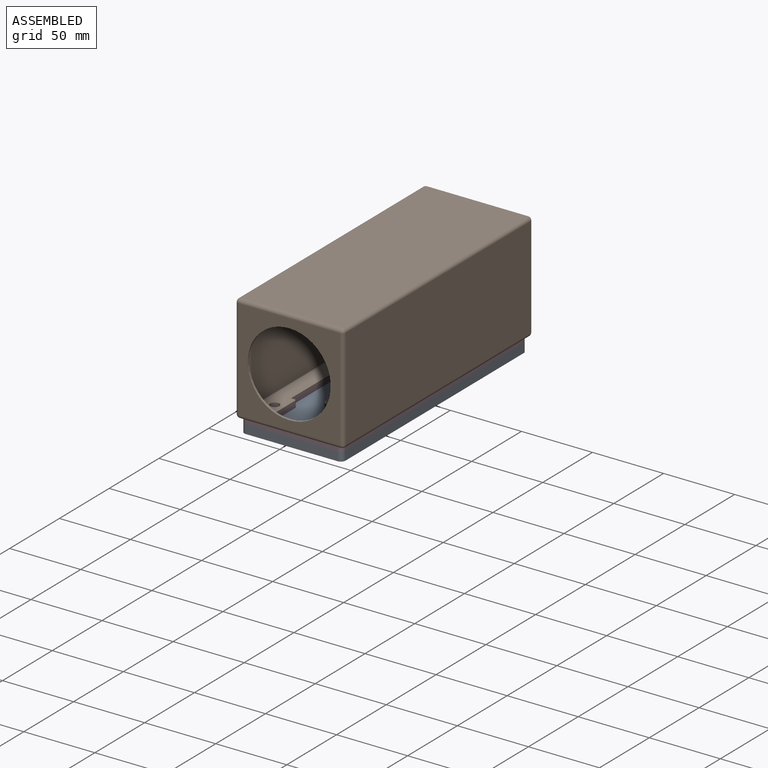
[diagram: assembled view]
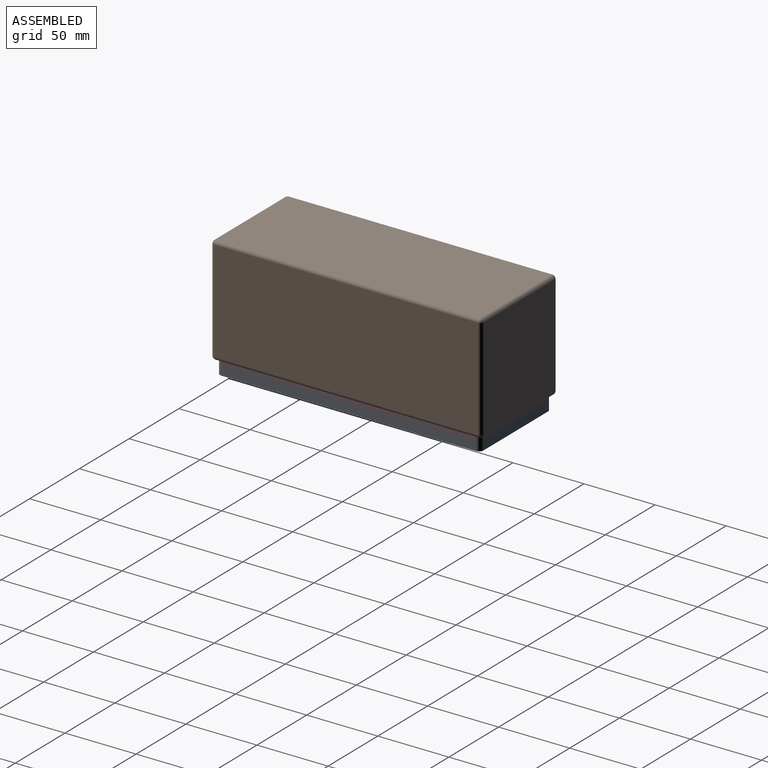
[diagram: assembled view, second angle]
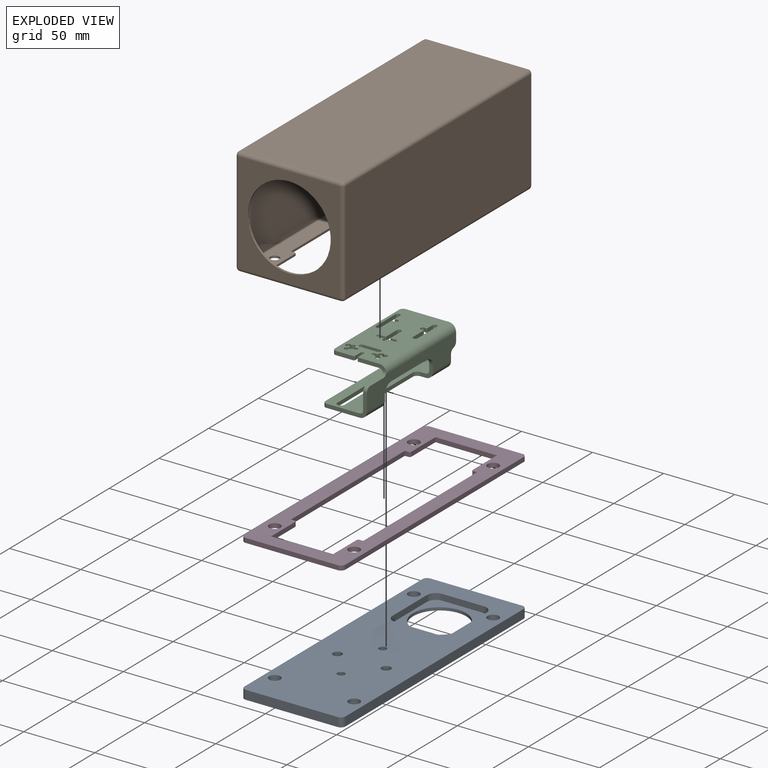
[diagram: exploded view]
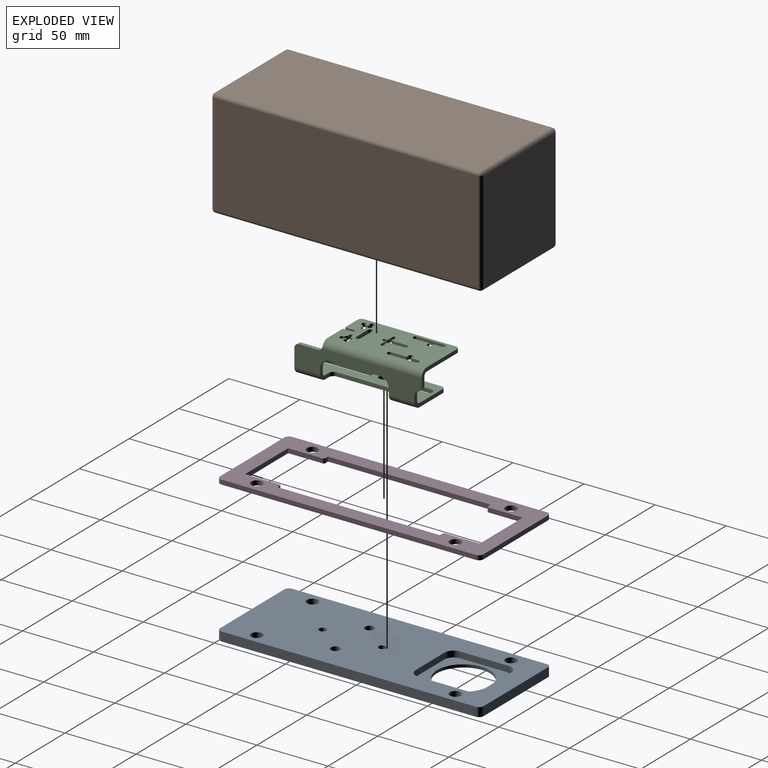
[diagram: exploded view, second angle]
ASSEMBLY  parts=4 mates=3
PART A: 36 faces, bbox 71.1x185.4x6.4 mm
  f0: cylinder r=2.86mm len=5.72mm, axis (0,0,1), area 22.8mm2, adj f9,f35
  f1: cylinder r=2.86mm len=5.72mm, axis (0,0,1), area 22.8mm2, adj f10,f35
  f2: cylinder r=2.86mm len=5.72mm, axis (0,0,1), area 22.8mm2, adj f11,f35
  f3: cylinder r=2.86mm len=5.72mm, axis (0,0,1), area 22.8mm2, adj f12,f35
  f4: cylinder r=2.54mm len=6.35mm, axis (0,0,1), area 101.3mm2, adj f26,f35
  f5: cylinder r=2.54mm len=6.35mm, axis (0,0,1), area 101.3mm2, adj f26,f35
  f6: cylinder r=3.17mm len=6.35mm, axis (0,0,1), area 126.7mm2, adj f26,f35
  f7: cylinder r=3.17mm len=6.35mm, axis (0,0,1), area 126.7mm2, adj f26,f35
  f8: cylinder r=18.73mm len=37.47mm, axis (0,0,1), area 238.3mm2, adj f25,f35
  f9: cone r=2.86mm half-angle=45deg, axis (0,0,1), area 33.9mm2, adj f0,f13
  f10: cone r=2.86mm half-angle=45deg, axis (0,0,1), area 33.9mm2, adj f1,f14
  f11: cone r=2.86mm half-angle=45deg, axis (0,0,1), area 33.9mm2, adj f2,f15
  f12: cone r=2.86mm half-angle=45deg, axis (0,0,1), area 33.9mm2, adj f3,f16
  f13: cylinder r=3.98mm len=7.95mm, axis (0,0,1), area 99mm2, adj f9,f26
  f14: cylinder r=3.98mm len=7.95mm, axis (0,0,1), area 99mm2, adj f10,f26
  f15: cylinder r=3.98mm len=7.95mm, axis (0,0,1), area 99mm2, adj f11,f26
  f16: cylinder r=3.98mm len=7.95mm, axis (0,0,1), area 99mm2, adj f12,f26
  f17: plane 34.29x4.33mm, normal (-1,0,0), area 148.3mm2, adj f18,f24,f25,f26
  f18: cylinder r=6.35mm len=6.35mm, axis (0,0,-1), area 43.1mm2, adj f17,f19,f25,f26
  f19: plane 29.21x4.33mm, normal (0,-1,0), area 126.3mm2, adj f18,f20,f25,f26
  f20: cylinder r=6.35mm len=6.35mm, axis (0,0,-1), area 43.1mm2, adj f19,f21,f25,f26
  f21: plane 34.29x4.33mm, normal (1,0,0), area 148.3mm2, adj f20,f22,f25,f26
  f22: cylinder r=6.35mm len=6.35mm, axis (0,0,-1), area 43.1mm2, adj f21,f23,f25,f26
  f23: plane 29.21x4.33mm, normal (0,1,0), area 126.3mm2, adj f22,f24,f25,f26
  f24: cylinder r=6.35mm len=6.35mm, axis (0,0,-1), area 43.1mm2, adj f17,f23,f25,f26
  f25: plane 46.99x41.91mm, normal (0,0,1), area 832.3mm2, adj f8,f17,f18,f19,f20,f21,f22,f23
  f26: plane 185.42x71.12mm, normal (0,0,1), area 10941.2mm2, adj f4,f5,f6,f7,f13,f14,f15,f16
  f27: cylinder r=3.17mm len=6.35mm, axis (0,0,1), area 31.7mm2, adj f26,f28,f34,f35
  f28: plane 179.07x6.35mm, normal (-1,0,0), area 1137.1mm2, adj f26,f27,f29,f35
  f29: cylinder r=3.17mm len=6.35mm, axis (0,0,1), area 31.7mm2, adj f26,f28,f30,f35
  f30: plane 64.77x6.35mm, normal (0,1,0), area 411.3mm2, adj f26,f29,f31,f35
  f31: cylinder r=3.17mm len=6.35mm, axis (0,0,1), area 31.7mm2, adj f26,f30,f32,f35
  f32: plane 179.07x6.35mm, normal (1,0,0), area 1137.1mm2, adj f26,f31,f33,f35
  f33: cylinder r=3.17mm len=6.35mm, axis (0,0,1), area 31.7mm2, adj f26,f32,f34,f35
  f34: plane 64.77x6.35mm, normal (0,-1,0), area 411.3mm2, adj f26,f27,f33,f35
  f35: plane 185.42x71.12mm, normal (0,0,-1), area 11869.5mm2, adj f0,f1,f2,f3,f4,f5,f6,f7
PART B: 81 faces, bbox 76.2x190.5x76.2 mm
  f0: sphere r=2.54mm, area 6.7mm2, adj f67,f75,f78,f79
  f1: sphere r=2.54mm, area 8.1mm2, adj f43,f47,f65,f67
  f2: sphere r=2.54mm, area 1.3mm2, adj f40,f46,f47
  f3: sphere r=2.54mm, area 3.4mm2, adj f38,f45,f46
  f4: sphere r=1.02mm, area 0.3mm2, adj f29,f33,f36
  f5: sphere r=1.02mm, area 1.4mm2, adj f28,f30,f35,f36
  f6: sphere r=1.02mm, area 1.1mm2, adj f19,f21,f30,f32
  f7: sphere r=1.02mm, area 0.5mm2, adj f13,f17,f33
  f8: cylinder r=3.17mm len=6.35mm, axis (0,0,1), area 30.4mm2, adj f39,f71
  f9: cylinder r=3.17mm len=6.35mm, axis (0,0,1), area 30.4mm2, adj f39,f71
  f10: cylinder r=3.17mm len=6.35mm, axis (0,0,1), area 30.4mm2, adj f39,f71
  f11: cylinder r=3.17mm len=6.35mm, axis (0,0,1), area 30.4mm2, adj f39,f71
  f12: cylinder r=29.21mm len=58.42mm, axis (0,-1,0), area 279.7mm2, adj f37,f70
  f13: sphere r=1.02mm, area 1.1mm2, adj f7,f17,f33,f34
  f14: sphere r=1.02mm, area 1.6mm2, adj f16,f17,f18
  f15: sphere r=1.02mm, area 1.6mm2, adj f16,f19,f20
  f16: cylinder r=1.02mm len=71.12mm, axis (-1,0,0), area 113.5mm2, adj f14,f15,f23,f24
  f17: cylinder r=1.02mm len=71.12mm, axis (0,0,-1), area 113.5mm2, adj f7,f13,f14,f24,f25
  f18: cylinder r=1.02mm len=185.42mm, axis (0,-1,0), area 295.9mm2, adj f14,f22,f23,f25
  f19: cylinder r=1.02mm len=185.42mm, axis (0,1,0), area 295.9mm2, adj f6,f15,f23,f27
  f20: cylinder r=1.02mm len=71.12mm, axis (0,0,-1), area 113.5mm2, adj f15,f24,f27,f29
  f21: sphere r=1.02mm, area 0.5mm2, adj f6,f30,f32
  f22: sphere r=1.02mm, area 1.6mm2, adj f18,f31,f32
  f23: plane 185.42x71.12mm, normal (0,0,-1), area 13187.1mm2, adj f16,f18,f19,f32
  f24: plane 71.12x71.12mm, normal (0,-1,0), area 5058.1mm2, adj f16,f17,f20,f33
  f25: plane 185.42x71.12mm, normal (1,0,0), area 13187.1mm2, adj f17,f18,f31,f34
  f26: sphere r=1.02mm, area 1.6mm2, adj f31,f34,f35
  f27: plane 185.42x71.12mm, normal (-1,0,0), area 13187.1mm2, adj f19,f20,f30,f36
  f28: sphere r=1.02mm, area 0.2mm2, adj f5,f30,f36
  f29: sphere r=1.02mm, area 1.3mm2, adj f4,f20,f33,f36
  f30: cylinder r=1.02mm len=71.12mm, axis (0,0,-1), area 113.5mm2, adj f5,f6,f21,f27,f28,f37
  f31: cylinder r=1.02mm len=71.12mm, axis (0,0,-1), area 113.5mm2, adj f22,f25,f26,f37
  f32: cylinder r=1.02mm len=71.12mm, axis (1,0,0), area 113.5mm2, adj f6,f21,f22,f23,f37
  f33: cylinder r=1.02mm len=71.12mm, axis (1,0,0), area 113.5mm2, adj f4,f7,f13,f24,f29,f39
  f34: cylinder r=1.02mm len=185.42mm, axis (0,1,0), area 295.9mm2, adj f13,f25,f26,f39
  f35: cylinder r=1.02mm len=71.12mm, axis (-1,0,0), area 113.5mm2, adj f5,f26,f37,f39
  f36: cylinder r=1.02mm len=185.42mm, axis (0,-1,0), area 295.9mm2, adj f4,f5,f27,f28,f29,f39
  f37: plane 71.12x71.12mm, normal (0,1,0), area 2377.6mm2, adj f12,f30,f31,f32,f35
  f38: sphere r=2.54mm, area 6.7mm2, adj f3,f44,f45,f46
  f39: plane 185.42x71.12mm, normal (0,0,1), area 5059.3mm2, adj f8,f9,f10,f11,f33,f34,f35,f36
  f40: sphere r=2.54mm, area 8.8mm2, adj f2,f46,f47,f64
  f41: plane 185.42x71.12mm, normal (1,0,0), area 13187.1mm2, adj f44,f46,f47,f65
  f42: sphere r=2.54mm, area 10.1mm2, adj f44,f65,f66
  f43: sphere r=2.54mm, area 2mm2, adj f1,f47,f67
  f44: cylinder r=2.54mm len=185.42mm, axis (0,1,0), area 739.8mm2, adj f38,f41,f42,f68
  f45: cylinder r=2.54mm len=71.12mm, axis (1,0,0), area 283.8mm2, adj f3,f38,f68,f69,f70
  f46: cylinder r=2.54mm len=71.12mm, axis (0,0,-1), area 283.8mm2, adj f2,f3,f38,f40,f41,f70
  f47: cylinder r=2.54mm len=185.42mm, axis (0,-1,0), area 739.8mm2, adj f1,f2,f40,f41,f43,f71
  f48: plane 24.13x1.52mm, normal (1,0,0), area 36.8mm2, adj f39,f49,f63,f71
  f49: plane 43.18x1.52mm, normal (0,-1,0), area 65.8mm2, adj f39,f48,f50,f71
  f50: plane 24.13x1.52mm, normal (-1,0,0), area 36.8mm2, adj f39,f49,f51,f71
  f51: cylinder r=1.27mm len=1.52mm, axis (0,0,1), area 3mm2, adj f39,f50,f52,f71
  f52: plane 2.54x1.52mm, normal (0,-1,0), area 3.9mm2, adj f39,f51,f53,f71
  f53: plane 114.3x1.52mm, normal (-1,0,0), area 174.2mm2, adj f39,f52,f54,f71
  f54: plane 2.54x1.52mm, normal (0,1,0), area 3.9mm2, adj f39,f53,f55,f71
  f55: cylinder r=1.27mm len=1.52mm, axis (0,0,1), area 3mm2, adj f39,f54,f56,f71
  f56: plane 24.13x1.52mm, normal (-1,0,0), area 36.8mm2, adj f39,f55,f57,f71
  f57: plane 43.18x1.52mm, normal (0,1,0), area 65.8mm2, adj f39,f56,f58,f71
  f58: plane 24.13x1.52mm, normal (1,0,0), area 36.8mm2, adj f39,f57,f59,f71
  f59: cylinder r=1.27mm len=1.52mm, axis (0,0,1), area 3mm2, adj f39,f58,f60,f71
  f60: plane 2.54x1.52mm, normal (0,1,0), area 3.9mm2, adj f39,f59,f61,f71
  f61: plane 114.3x1.52mm, normal (1,0,0), area 174.2mm2, adj f39,f60,f62,f71
  f62: plane 2.54x1.52mm, normal (0,-1,0), area 3.9mm2, adj f39,f61,f63,f71
  f63: cylinder r=1.27mm len=1.52mm, axis (0,0,1), area 3mm2, adj f39,f48,f62,f71
  f64: cylinder r=2.54mm len=71.12mm, axis (-1,0,0), area 283.8mm2, adj f40,f70,f71,f72
  f65: cylinder r=2.54mm len=71.12mm, axis (0,0,-1), area 283.8mm2, adj f1,f41,f42,f74
  f66: cylinder r=2.54mm len=71.12mm, axis (-1,0,0), area 283.8mm2, adj f42,f68,f73,f74
  f67: cylinder r=2.54mm len=71.12mm, axis (1,0,0), area 283.8mm2, adj f0,f1,f43,f71,f74,f75
  f68: plane 185.42x71.12mm, normal (0,0,1), area 13187.1mm2, adj f44,f45,f66,f76
  f69: sphere r=2.54mm, area 10.1mm2, adj f45,f76,f77
  f70: plane 71.12x71.12mm, normal (0,-1,0), area 2377.6mm2, adj f12,f45,f46,f64,f77
  f71: plane 185.42x71.12mm, normal (0,0,-1), area 5059.3mm2, adj f8,f9,f10,f11,f47,f48,f49,f50
  f72: sphere r=2.54mm, area 10.1mm2, adj f64,f77,f78
  f73: sphere r=2.54mm, area 10.1mm2, adj f66,f76,f79
  f74: plane 71.12x71.12mm, normal (0,1,0), area 5058.1mm2, adj f65,f66,f67,f79
  f75: sphere r=2.54mm, area 3.4mm2, adj f0,f67,f79
  f76: cylinder r=2.54mm len=185.42mm, axis (0,-1,0), area 739.8mm2, adj f68,f69,f73,f80
  f77: cylinder r=2.54mm len=71.12mm, axis (0,0,-1), area 283.8mm2, adj f69,f70,f72,f80
  f78: cylinder r=2.54mm len=185.42mm, axis (0,1,0), area 739.8mm2, adj f0,f71,f72,f80
  f79: cylinder r=2.54mm len=71.12mm, axis (0,0,-1), area 283.8mm2, adj f0,f73,f74,f75,f80
  f80: plane 185.42x71.12mm, normal (-1,0,0), area 13187.1mm2, adj f76,f77,f78,f79
PART C: 125 faces, bbox 38.1x89.6x26.7 mm
  f0: cylinder r=1.59mm len=3.18mm, axis (0,0,1), area 13.3mm2, adj f86,f122,f123,f124
  f1: cylinder r=1.6mm len=3.2mm, axis (0,0,-1), area 18.2mm2, adj f82,f83,f86,f124
  f2: cylinder r=1.59mm len=3.18mm, axis (0,0,1), area 20.1mm2, adj f9,f10,f86,f124
  f3: cylinder r=1.6mm len=3.2mm, axis (0,0,1), area 20.2mm2, adj f78,f79,f86,f124
  f4: cylinder r=1.08mm len=2.67mm, axis (0,0,1), area 9mm2, adj f72,f73,f86,f124
  f5: cylinder r=1.6mm len=3.2mm, axis (0,0,-1), area 20.3mm2, adj f63,f64,f86,f124
  f6: cylinder r=1.59mm len=3.18mm, axis (0,0,1), area 20.1mm2, adj f61,f62,f86,f124
  f7: cylinder r=1.6mm len=3.2mm, axis (0,0,1), area 18.2mm2, adj f57,f58,f86,f124
  f8: cylinder r=1.59mm len=3.18mm, axis (0,0,1), area 13.3mm2, adj f86,f87,f88,f124
  f9: cylinder r=0.51mm len=2.67mm, axis (0,0,1), area 2.2mm2, adj f2,f86,f117,f124
  f10: cylinder r=0.51mm len=2.67mm, axis (0,0,-1), area 2.2mm2, adj f2,f51,f86,f124
  f11: cylinder r=2.54mm len=5.08mm, axis (0,0,1), area 21.3mm2, adj f19,f20,f25,f27
  f12: cylinder r=2.54mm len=5.08mm, axis (0,0,1), area 21.3mm2, adj f16,f17,f25,f27
  f13: plane 79.38x2.67mm, normal (-1,0,0), area 211.7mm2, adj f24,f25,f26,f27
  f14: plane 41.91x2.67mm, normal (1,0,0), area 111.8mm2, adj f22,f23,f25,f27
  f15: cylinder r=2.54mm len=5.08mm, axis (0,0,1), area 21.3mm2, adj f16,f17,f25,f27
  f16: plane 33.02x2.67mm, normal (-1,0,0), area 88.1mm2, adj f12,f15,f25,f27
  f17: plane 33.02x2.67mm, normal (1,0,0), area 88.1mm2, adj f12,f15,f25,f27
  f18: cylinder r=2.54mm len=5.08mm, axis (0,0,1), area 21.3mm2, adj f19,f20,f25,f27
  f19: plane 33.02x2.67mm, normal (-1,0,0), area 88.1mm2, adj f11,f18,f25,f27
  f20: plane 33.02x2.67mm, normal (1,0,0), area 88.1mm2, adj f11,f18,f25,f27
  f21: cylinder r=0.51mm len=2.67mm, axis (0,0,-1), area 1.9mm2, adj f32,f33,f86,f124
  f22: cylinder r=3.17mm len=3.18mm, axis (0,0,-1), area 13.3mm2, adj f14,f25,f27,f37
  f23: cylinder r=3.17mm len=3.18mm, axis (0,0,-1), area 13.3mm2, adj f14,f25,f27,f41
  f24: cylinder r=2.54mm len=2.67mm, axis (0,0,-1), area 10.6mm2, adj f13,f25,f27,f43
  f25: plane 84.46x26.03mm, normal (0,0,-1), area 1487.1mm2, adj f11,f12,f13,f14,f15,f16,f17,f18
  f26: cylinder r=2.54mm len=2.67mm, axis (0,0,1), area 10.6mm2, adj f13,f25,f27,f46
  f27: plane 84.46x26.03mm, normal (0,0,1), area 1487.1mm2, adj f11,f12,f13,f14,f15,f16,f17,f18
  f28: cylinder r=0.51mm len=2.67mm, axis (0,0,1), area 1.9mm2, adj f49,f51,f86,f124
  f29: plane 2.67x0.3mm, normal (0,1,0), area 0.8mm2, adj f55,f57,f86,f124
  f30: plane 2.67x0.3mm, normal (0,-1,0), area 0.8mm2, adj f56,f58,f86,f124
  f31: cylinder r=0.51mm len=2.67mm, axis (0,0,-1), area 1.4mm2, adj f34,f59,f86,f124
  f32: cylinder r=1.59mm len=2.67mm, axis (0,0,1), area 0.7mm2, adj f21,f61,f86,f124
  f33: cylinder r=1.59mm len=2.67mm, axis (0,0,1), area 1.6mm2, adj f21,f63,f86,f124
  f34: cylinder r=1.59mm len=2.67mm, axis (0,0,1), area 4.1mm2, adj f31,f64,f86,f124
  f35: cylinder r=5.08mm len=18.11mm, axis (0,-1,0), area 144.4mm2, adj f25,f41,f43,f65
  f36: cylinder r=5.08mm len=18.08mm, axis (0,-1,0), area 144.3mm2, adj f25,f37,f46,f65
  f37: plane 8.89x8.88mm, normal (0,-1,0), area 36mm2, adj f22,f25,f27,f36,f38,f47,f65,f67
  f38: cylinder r=6.35mm len=6.35mm, axis (-1,0,0), area 26.6mm2, adj f37,f39,f65,f67
  f39: plane 35.56x2.67mm, normal (0,0,-1), area 94.8mm2, adj f38,f40,f65,f67
  f40: cylinder r=6.35mm len=6.35mm, axis (-1,0,0), area 26.6mm2, adj f39,f41,f65,f67
  f41: plane 8.89x8.88mm, normal (0,1,0), area 36mm2, adj f23,f25,f27,f35,f40,f42,f65,f67
  f42: cylinder r=2.41mm len=18.11mm, axis (0,-1,0), area 68.5mm2, adj f27,f41,f43,f67
  f43: plane 28.57x17.09mm, normal (0,-1,0), area 110.4mm2, adj f24,f25,f27,f35,f42,f44,f65,f67
  f44: cylinder r=3.17mm len=3.18mm, axis (-1,0,0), area 13.3mm2, adj f43,f48,f65,f67
  f45: cylinder r=3.17mm len=3.11mm, axis (1,0,0), area 11.6mm2, adj f46,f65,f66,f67
  f46: plane 28.57x9.53mm, normal (0,1,0), area 90.2mm2, adj f25,f26,f27,f36,f45,f47,f65,f67
  f47: cylinder r=2.41mm len=18.08mm, axis (0,-1,0), area 68.5mm2, adj f27,f37,f46,f67
  f48: plane 13.36x2.67mm, normal (0,0,1), area 35.6mm2, adj f44,f65,f67,f68
  f49: cylinder r=1.59mm len=2.67mm, axis (0,0,1), area 1.6mm2, adj f28,f78,f86,f124
  f50: cylinder r=1.59mm len=2.67mm, axis (0,0,1), area 4mm2, adj f52,f79,f86,f124
  f51: cylinder r=1.59mm len=2.67mm, axis (0,0,1), area 0.7mm2, adj f10,f28,f86,f124
  f52: cylinder r=0.51mm len=2.67mm, axis (0,0,1), area 1.4mm2, adj f50,f81,f86,f124
  f53: plane 2.67x0.25mm, normal (0,-1,0), area 0.7mm2, adj f82,f84,f86,f124
  f54: plane 2.67x0.25mm, normal (0,1,0), area 0.7mm2, adj f83,f85,f86,f124
  f55: cylinder r=0.51mm len=2.67mm, axis (0,0,1), area 2.1mm2, adj f29,f86,f87,f124
  f56: cylinder r=0.51mm len=2.67mm, axis (0,0,-1), area 2.1mm2, adj f30,f86,f90,f124
  f57: cylinder r=0.51mm len=2.67mm, axis (0,0,1), area 0.8mm2, adj f7,f29,f86,f124
  f58: cylinder r=0.51mm len=2.67mm, axis (0,0,-1), area 0.8mm2, adj f7,f30,f86,f124
  f59: plane 2.67x1.2mm, normal (0,1,0), area 3.2mm2, adj f31,f86,f91,f124
  f60: cylinder r=0.51mm len=2.67mm, axis (0,0,1), area 2.4mm2, adj f86,f92,f93,f124
  f61: cylinder r=0.51mm len=2.67mm, axis (0,0,1), area 2.2mm2, adj f6,f32,f86,f124
  f62: cylinder r=0.51mm len=2.67mm, axis (0,0,-1), area 2.2mm2, adj f6,f86,f93,f124
  f63: cylinder r=0.51mm len=2.67mm, axis (0,0,-1), area 2.2mm2, adj f5,f33,f86,f124
  f64: cylinder r=0.51mm len=2.67mm, axis (0,0,1), area 2.2mm2, adj f5,f34,f86,f124
  f65: plane 89.56x16.59mm, normal (1,0,0), area 945.9mm2, adj f35,f36,f37,f38,f39,f40,f41,f43
  f66: cylinder r=3.17mm len=3.11mm, axis (-1,0,0), area 11.6mm2, adj f45,f65,f67,f102
  f67: plane 89.56x16.59mm, normal (-1,0,0), area 946mm2, adj f37,f38,f39,f40,f41,f42,f43,f44
  f68: cylinder r=3.17mm len=3.45mm, axis (1,0,0), area 13.7mm2, adj f48,f65,f67,f69,f103,f104
  f69: cylinder r=5.08mm len=70.4mm, axis (0,1,0), area 557.9mm2, adj f65,f68,f86,f102,f104
  f70: cylinder r=0.51mm len=2.67mm, axis (0,0,-1), area 2.1mm2, adj f86,f104,f105,f124
  f71: cylinder r=0.51mm len=2.67mm, axis (0,0,1), area 2.1mm2, adj f86,f98,f107,f124
  f72: plane 2.67x1.14mm, normal (-1,0,0), area 3mm2, adj f4,f74,f86,f124
  f73: plane 2.67x1.14mm, normal (1,0,0), area 3mm2, adj f4,f77,f86,f124
  f74: cylinder r=0.51mm len=2.67mm, axis (0,0,1), area 2.1mm2, adj f72,f86,f108,f124
  f75: cylinder r=0.51mm len=2.67mm, axis (0,0,1), area 2.1mm2, adj f86,f110,f111,f124
  f76: cylinder r=0.51mm len=2.67mm, axis (0,0,-1), area 2.1mm2, adj f86,f113,f114,f124
  f77: cylinder r=0.51mm len=2.67mm, axis (0,0,-1), area 2.1mm2, adj f73,f86,f116,f124
  f78: cylinder r=0.51mm len=2.67mm, axis (0,0,1), area 2.1mm2, adj f3,f49,f86,f124
  f79: cylinder r=0.51mm len=2.67mm, axis (0,0,-1), area 2.1mm2, adj f3,f50,f86,f124
  f80: cylinder r=0.51mm len=2.67mm, axis (0,0,-1), area 2.4mm2, adj f86,f117,f118,f124
  f81: plane 2.67x1.24mm, normal (0,1,0), area 3.3mm2, adj f52,f86,f119,f124
  f82: cylinder r=0.51mm len=2.67mm, axis (0,0,1), area 0.8mm2, adj f1,f53,f86,f124
  f83: cylinder r=0.51mm len=2.67mm, axis (0,0,-1), area 0.8mm2, adj f1,f54,f86,f124
  f84: cylinder r=0.51mm len=2.67mm, axis (0,0,1), area 2.1mm2, adj f53,f86,f120,f124
  f85: cylinder r=0.51mm len=2.67mm, axis (0,0,-1), area 2.1mm2, adj f54,f86,f123,f124
  f86: plane 69.85x33.02mm, normal (0,0,1), area 1934.7mm2, adj f0,f1,f2,f3,f4,f5,f6,f7
  f87: plane 10.66x2.67mm, normal (1,0,0), area 28.4mm2, adj f8,f55,f86,f124
  f88: plane 19.51x2.67mm, normal (-1,0,0), area 52mm2, adj f8,f86,f89,f124
  f89: cylinder r=1.59mm len=3.18mm, axis (0,0,1), area 13.3mm2, adj f86,f88,f90,f124
  f90: plane 5.29x2.67mm, normal (1,0,0), area 14.1mm2, adj f56,f86,f89,f124
  f91: cylinder r=1.08mm len=2.67mm, axis (0,0,1), area 9mm2, adj f59,f86,f92,f124
  f92: plane 2.67x1.93mm, normal (0,-1,0), area 5.1mm2, adj f60,f86,f91,f124
  f93: cylinder r=1.59mm len=2.88mm, axis (0,0,1), area 11.6mm2, adj f60,f62,f86,f124
  f94: cylinder r=1.59mm len=3.18mm, axis (0,0,1), area 13.3mm2, adj f86,f95,f97,f124
  f95: plane 11.99x2.67mm, normal (0,1,0), area 32mm2, adj f86,f94,f96,f124
  f96: cylinder r=1.59mm len=3.18mm, axis (0,0,1), area 13.3mm2, adj f86,f95,f97,f124
  f97: plane 11.99x2.67mm, normal (0,-1,0), area 32mm2, adj f86,f94,f96,f124
  f98: plane 12.36x2.67mm, normal (0,-1,0), area 33mm2, adj f71,f86,f99,f124
  f99: cylinder r=2.54mm len=2.67mm, axis (0,0,-1), area 10.6mm2, adj f86,f98,f100,f124
  f100: plane 64.77x2.67mm, normal (-1,0,0), area 172.7mm2, adj f86,f99,f101,f124
  f101: cylinder r=2.54mm len=2.67mm, axis (0,0,-1), area 10.6mm2, adj f86,f100,f102,f124
  f102: plane 35.56x10.99mm, normal (0,1,0), area 112.7mm2, adj f65,f66,f67,f69,f86,f101,f103,f124
  f103: cylinder r=2.41mm len=70.39mm, axis (0,-1,0), area 265.3mm2, adj f67,f68,f102,f104,f124
  f104: plane 19.7x3.3mm, normal (0,-1,0), area 50.6mm2, adj f68,f69,f70,f86,f103,f124
  f105: plane 5.89x2.67mm, normal (-1,0,0), area 15.7mm2, adj f70,f86,f106,f124
  f106: cylinder r=1.08mm len=2.67mm, axis (0,0,1), area 9mm2, adj f86,f105,f107,f124
  f107: plane 5.89x2.67mm, normal (1,0,0), area 15.7mm2, adj f71,f86,f106,f124
  f108: plane 4.41x2.67mm, normal (0,1,0), area 11.8mm2, adj f74,f86,f109,f124
  f109: cylinder r=1.08mm len=2.67mm, axis (0,0,1), area 9mm2, adj f86,f108,f110,f124
  f110: plane 3.88x2.67mm, normal (0,-1,0), area 10.4mm2, adj f75,f86,f109,f124
  f111: plane 10.64x2.67mm, normal (-1,0,0), area 28.4mm2, adj f75,f86,f112,f124
  f112: cylinder r=1.59mm len=3.18mm, axis (0,0,1), area 13.3mm2, adj f86,f111,f113,f124
  f113: plane 10.64x2.67mm, normal (1,0,0), area 28.4mm2, adj f76,f86,f112,f124
  f114: plane 3.93x2.67mm, normal (0,-1,0), area 10.5mm2, adj f76,f86,f115,f124
  f115: cylinder r=1.08mm len=2.67mm, axis (0,0,1), area 9mm2, adj f86,f114,f116,f124
  f116: plane 4.41x2.67mm, normal (0,1,0), area 11.8mm2, adj f77,f86,f115,f124
  f117: cylinder r=1.59mm len=2.88mm, axis (0,0,1), area 11.6mm2, adj f9,f80,f86,f124
  f118: plane 2.67x1.97mm, normal (0,-1,0), area 5.3mm2, adj f80,f86,f119,f124
  f119: cylinder r=1.08mm len=2.67mm, axis (0,0,1), area 9mm2, adj f81,f86,f118,f124
  f120: plane 5.29x2.67mm, normal (-1,0,0), area 14.1mm2, adj f84,f86,f121,f124
  f121: cylinder r=1.59mm len=3.18mm, axis (0,0,1), area 13.3mm2, adj f86,f120,f122,f124
  f122: plane 19.51x2.67mm, normal (1,0,0), area 52mm2, adj f0,f86,f121,f124
  f123: plane 10.66x2.67mm, normal (-1,0,0), area 28.4mm2, adj f0,f85,f86,f124
  f124: plane 69.85x33.02mm, normal (0,0,-1), area 1934.7mm2, adj f0,f1,f2,f3,f4,f5,f6,f7
PART D: 30 faces, bbox 71.1x185.4x3.2 mm
  f0: cylinder r=3.98mm len=7.95mm, axis (0,0,1), area 79.3mm2, adj f4,f29
  f1: cylinder r=3.98mm len=7.95mm, axis (0,0,1), area 79.3mm2, adj f4,f29
  f2: cylinder r=3.98mm len=7.95mm, axis (0,0,1), area 79.3mm2, adj f4,f29
  f3: cylinder r=3.98mm len=7.95mm, axis (0,0,1), area 79.3mm2, adj f4,f29
  f4: plane 185.42x71.12mm, normal (0,0,-1), area 4978.5mm2, adj f0,f1,f2,f3,f5,f6,f7,f8
  f5: cylinder r=3.17mm len=3.18mm, axis (0,0,-1), area 15.8mm2, adj f4,f6,f12,f29
  f6: plane 64.77x3.18mm, normal (0,-1,0), area 205.6mm2, adj f4,f5,f7,f29
  f7: cylinder r=3.17mm len=3.18mm, axis (0,0,-1), area 15.8mm2, adj f4,f6,f8,f29
  f8: plane 179.07x3.18mm, normal (1,0,0), area 568.5mm2, adj f4,f7,f9,f29
  f9: cylinder r=3.17mm len=3.18mm, axis (0,0,-1), area 15.8mm2, adj f4,f8,f10,f29
  f10: plane 64.77x3.18mm, normal (0,1,0), area 205.6mm2, adj f4,f9,f11,f29
  f11: cylinder r=3.17mm len=3.18mm, axis (0,0,-1), area 15.8mm2, adj f4,f10,f12,f29
  f12: plane 179.07x3.18mm, normal (-1,0,0), area 568.5mm2, adj f4,f5,f11,f29
  f13: cylinder r=1.27mm len=3.18mm, axis (0,0,1), area 6.3mm2, adj f4,f14,f28,f29
  f14: plane 3.18x2.54mm, normal (0,1,0), area 8.1mm2, adj f4,f13,f15,f29
  f15: plane 114.3x3.18mm, normal (1,0,0), area 362.9mm2, adj f4,f14,f16,f29
  f16: plane 3.18x2.54mm, normal (0,-1,0), area 8.1mm2, adj f4,f15,f17,f29
  f17: cylinder r=1.27mm len=3.18mm, axis (0,0,1), area 6.3mm2, adj f4,f16,f18,f29
  f18: plane 24.13x3.18mm, normal (1,0,0), area 76.6mm2, adj f4,f17,f19,f29
  f19: plane 43.18x3.18mm, normal (0,-1,0), area 137.1mm2, adj f4,f18,f20,f29
  f20: plane 24.13x3.18mm, normal (-1,0,0), area 76.6mm2, adj f4,f19,f21,f29
  f21: cylinder r=1.27mm len=3.18mm, axis (0,0,1), area 6.3mm2, adj f4,f20,f22,f29
  f22: plane 3.18x2.54mm, normal (0,-1,0), area 8.1mm2, adj f4,f21,f23,f29
  f23: plane 114.3x3.18mm, normal (-1,0,0), area 362.9mm2, adj f4,f22,f24,f29
  f24: plane 3.18x2.54mm, normal (0,1,0), area 8.1mm2, adj f4,f23,f25,f29
  f25: cylinder r=1.27mm len=3.18mm, axis (0,0,1), area 6.3mm2, adj f4,f24,f26,f29
  f26: plane 24.13x3.18mm, normal (-1,0,0), area 76.6mm2, adj f4,f25,f27,f29
  f27: plane 43.18x3.18mm, normal (0,1,0), area 137.1mm2, adj f4,f26,f28,f29
  f28: plane 24.13x3.18mm, normal (1,0,0), area 76.6mm2, adj f4,f13,f27,f29
  f29: plane 185.42x71.12mm, normal (0,0,1), area 4978.5mm2, adj f0,f1,f2,f3,f5,f6,f7,f8
PLACE A t=(116.32,-54.19,54.03)mm
PLACE B t=(116.32,-54.19,54.03)mm
PLACE C t=(116.32,-54.19,54.03)mm
PLACE D t=(116.32,-54.19,54.03)mm
MATE fastened B.f10 <-> D.f2  axis (0,0,-1) through (144.26,-124.04,54.03)mm
MATE fastened A.f0 <-> D.f2  axis (0,0,1) through (144.26,-124.04,50.86)mm
MATE fastened A.f4 <-> C.f12  axis (0,0,1) through (116.32,-55.46,50.86)mm
